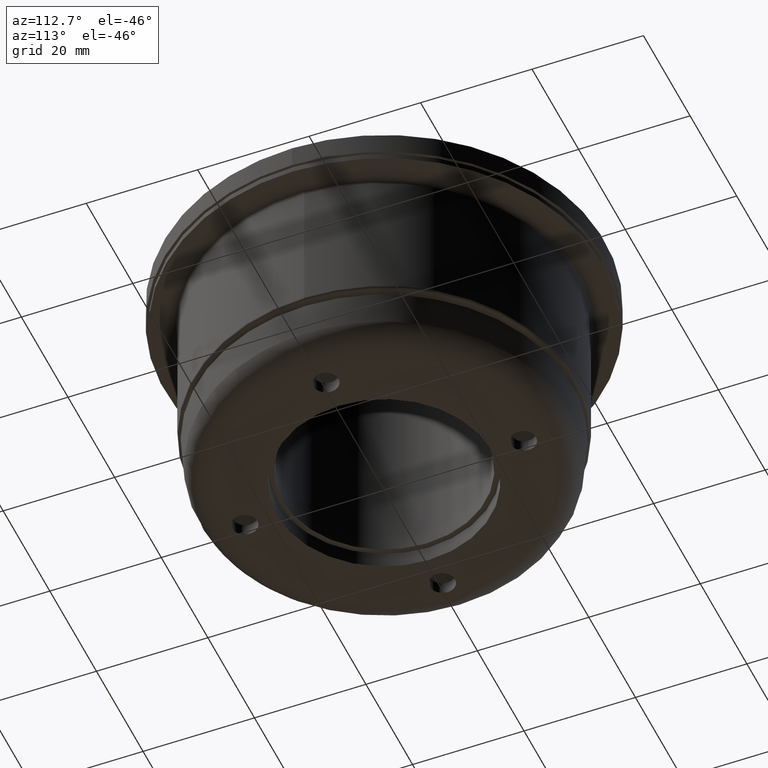
[diagram: clean part render]
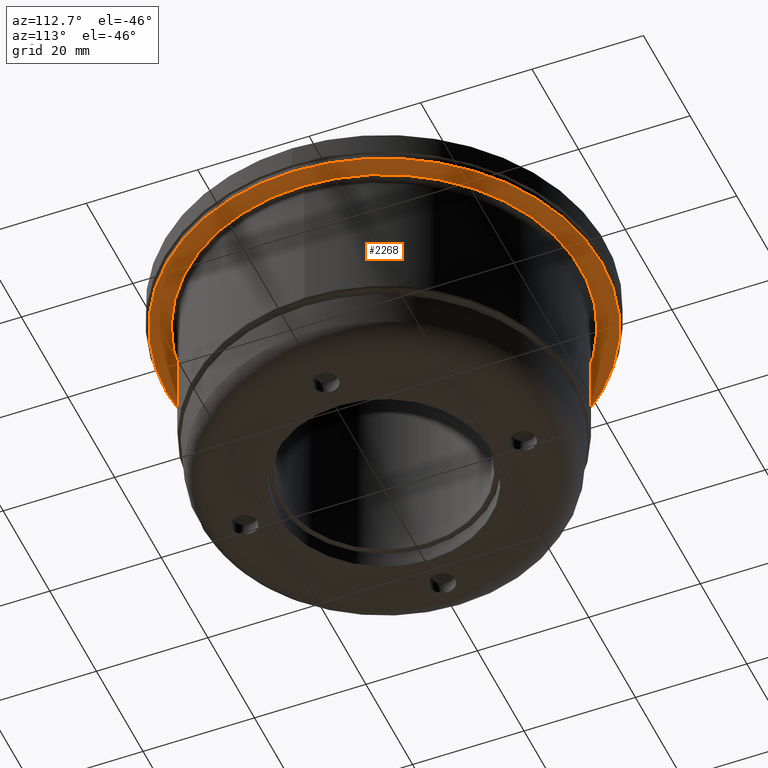
[diagram: same view with one face highlighted and labeled with its STEP entity id]
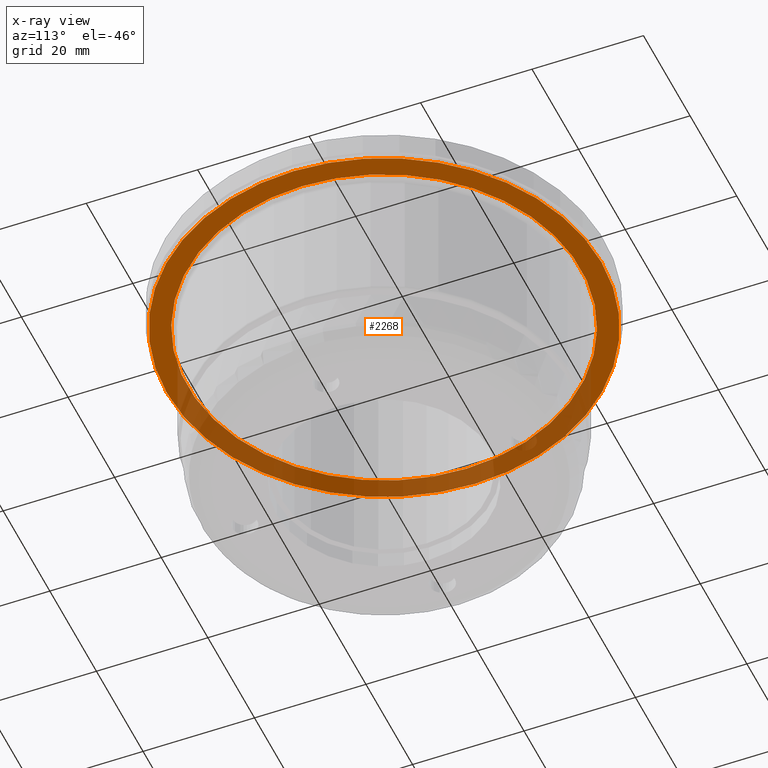
[diagram: x-ray of the same camera — body ghosted, the highlighted face saturated]
A machine part, auxiliary view. The second image highlights one B-rep face of the part: STEP entity #2268.
The next image is the same camera in x-ray: the body ghosted, the highlighted face saturated — about 38% of this face is hidden behind the body in this view.
In plain terms, the highlighted planar face has unit normal (0, 0, -1).
Its self-contained STEP definition (entity closure, byte-faithful):
#2234=CARTESIAN_POINT('',(35.25,-4.134526E-015,34.0));
#2235=VERTEX_POINT('',#2234);
#2236=CARTESIAN_POINT('',(-5.551115E-016,3.714145E-016,34.0));
#2237=DIRECTION('',(0.0,0.0,-1.0));
#2238=DIRECTION('',(-1.0,0.0,0.0));
#2239=AXIS2_PLACEMENT_3D('',#2236,#2237,#2238);
#2240=CIRCLE('',#2239,35.25);
#2241=EDGE_CURVE('',#2235,#2235,#2240,.T.);
#2249=CARTESIAN_POINT('',(0.0,-35.400000000000006,34.0));
#2250=DIRECTION('',(0.0,0.0,-1.0));
#2251=DIRECTION('',(-1.0,0.0,0.0));
#2252=AXIS2_PLACEMENT_3D('',#2249,#2250,#2251);
#2253=PLANE('',#2252);
#2254=CARTESIAN_POINT('',(-4.776123E-015,39.0,34.000000000000014));
#2255=VERTEX_POINT('',#2254);
#2256=CARTESIAN_POINT('',(0.0,-6.245699E-015,34.0));
#2257=DIRECTION('',(0.0,0.0,1.0));
#2258=DIRECTION('',(0.0,-1.0,0.0));
#2259=AXIS2_PLACEMENT_3D('',#2256,#2257,#2258);
#2260=CIRCLE('',#2259,39.0);
#2261=EDGE_CURVE('',#2255,#2255,#2260,.T.);
#2262=ORIENTED_EDGE('',*,*,#2261,.F.);
#2263=EDGE_LOOP('',(#2262));
#2264=FACE_OUTER_BOUND('',#2263,.T.);
#2265=ORIENTED_EDGE('',*,*,#2241,.F.);
#2266=EDGE_LOOP('',(#2265));
#2267=FACE_BOUND('',#2266,.T.);
#2268=ADVANCED_FACE('',(#2264,#2267),#2253,.T.);